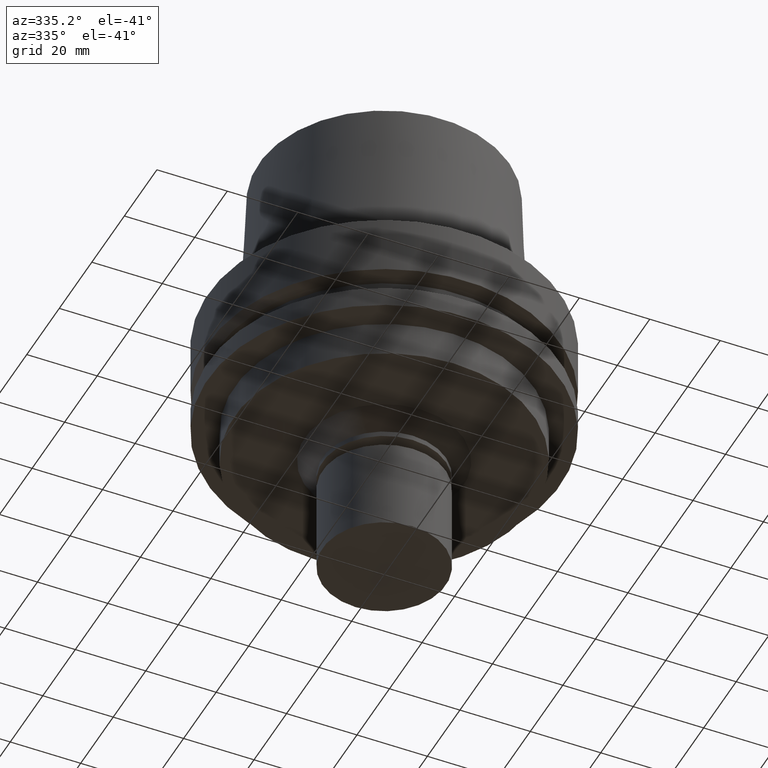
[diagram: clean part render]
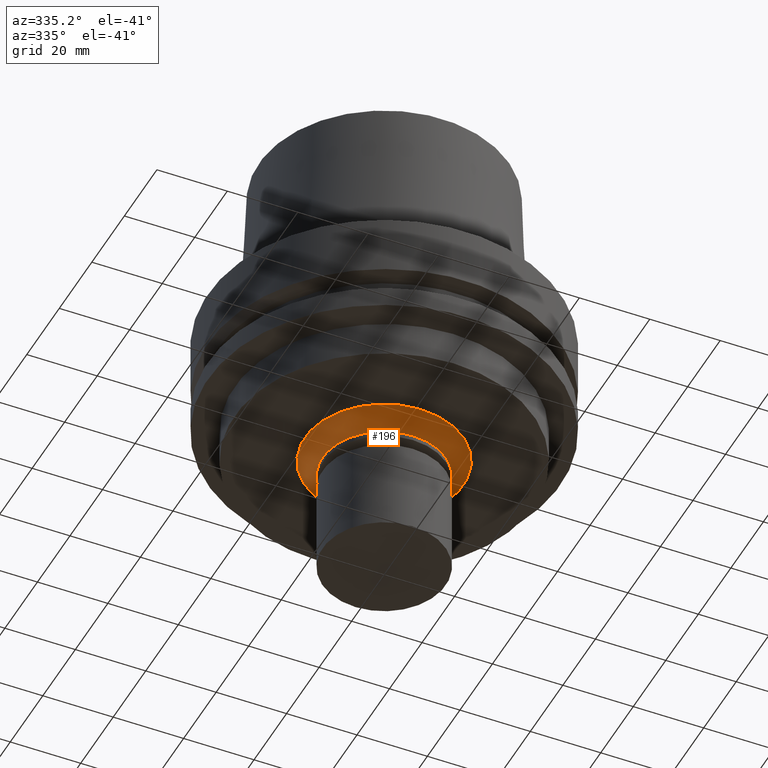
[diagram: same view with one face highlighted and labeled with its STEP entity id]
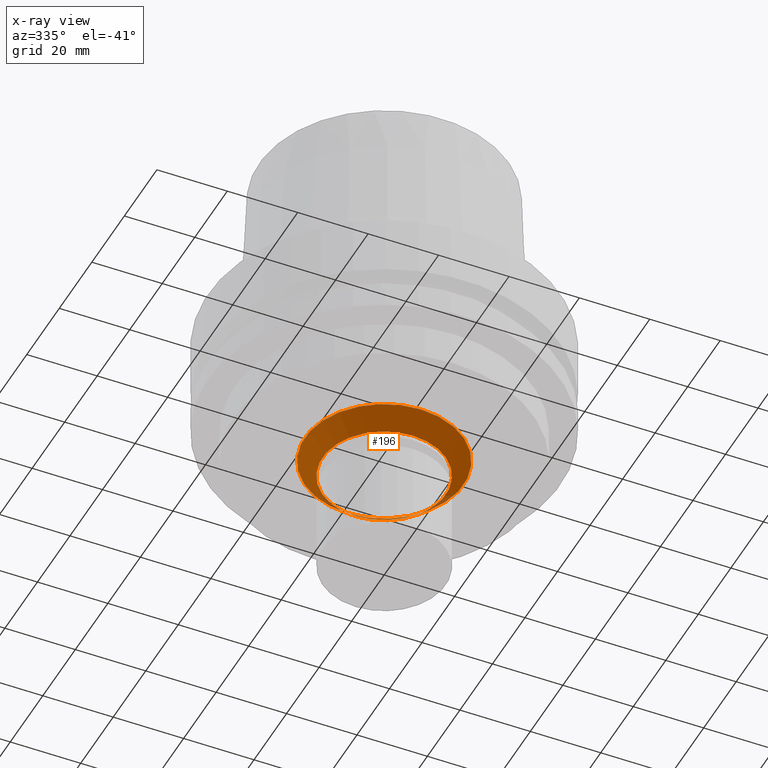
[diagram: x-ray of the same camera — body ghosted, the highlighted face saturated]
A machine part, auxiliary view. The second image highlights one B-rep face of the part: STEP entity #196.
The next image is the same camera in x-ray: the body ghosted, the highlighted face saturated — about 4% of this face is hidden behind the body in this view.
In plain terms, the highlighted conical surface has half-angle 45 deg.
Its self-contained STEP definition (entity closure, byte-faithful):
#98=EDGE_CURVE('Unnamed[1]',#249,#249,#250,.T.);
#112=EDGE_CURVE('Unnamed[1]',#270,#270,#271,.T.);
#196=ADVANCED_FACE('Unnamed[1]',(#398,#399),#400,.T.);
#249=VERTEX_POINT('',#455);
#250=CIRCLE('',#456,22.4999999999999);
#270=VERTEX_POINT('',#482);
#271=CIRCLE('',#483,17.4999999999999);
#398=FACE_BOUND('',#641,.T.);
#399=FACE_BOUND('',#642,.T.);
#400=CONICAL_SURFACE('',#643,19.9999999999999,0.785398163397451);
#455=CARTESIAN_POINT('',(2.38806125833734E-015,22.4999999999999,-39.0));
#456=AXIS2_PLACEMENT_3D('',#687,#688,#689);
#482=CARTESIAN_POINT('',(2.69422295812418E-015,17.4999999999999,-44.0));
#483=AXIS2_PLACEMENT_3D('',#710,#711,#712);
#641=EDGE_LOOP('',(#849));
#642=EDGE_LOOP('',(#850));
#643=AXIS2_PLACEMENT_3D('',#851,#852,#853);
#687=CARTESIAN_POINT('',(2.38806125833734E-015,4.77612251667468E-015,-39.0));
#688=DIRECTION('',(6.12323399573677E-017,1.22464679914735E-016,-1.0));
#689=DIRECTION('',(-1.23259516440783E-032,1.0,1.22464679914735E-016));
#710=CARTESIAN_POINT('',(2.69422295812418E-015,5.38844591624835E-015,-44.0));
#711=DIRECTION('',(6.12323399573676E-017,1.22464679914735E-016,-1.0));
#712=DIRECTION('',(-1.23259516440783E-032,1.0,1.22464679914735E-016));
#849=ORIENTED_EDGE('',*,*,#112,.F.);
#850=ORIENTED_EDGE('',*,*,#98,.T.);
#851=CARTESIAN_POINT('',(2.54114210823076E-015,5.08228421646152E-015,-41.5));
#852=DIRECTION('',(-6.12323399573677E-017,-1.22464679914735E-016,1.0));
#853=DIRECTION('',(-1.23259516440783E-032,1.0,1.22464679914735E-016));